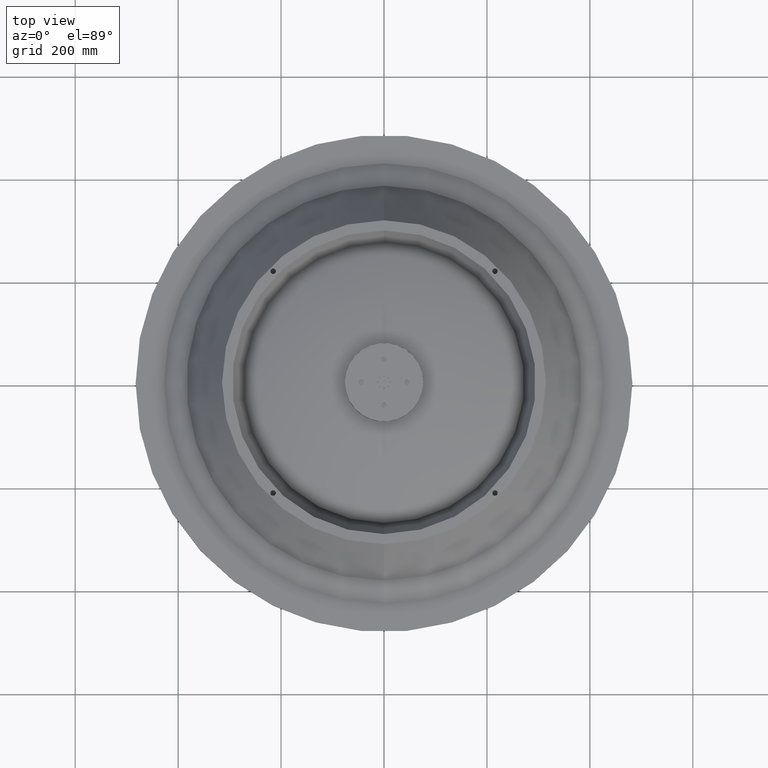
[diagram: clean part render]
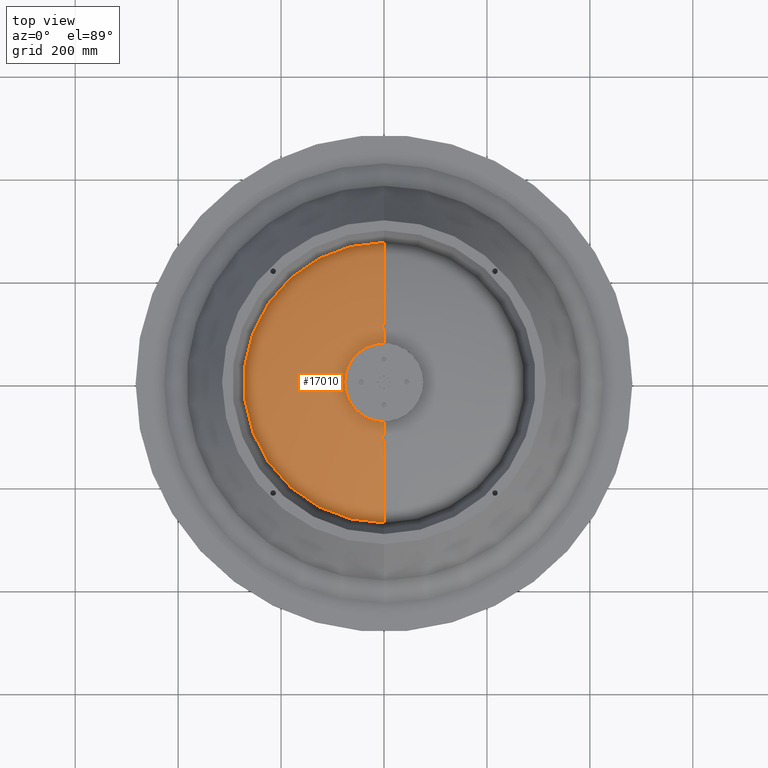
[diagram: same view with one face highlighted and labeled with its STEP entity id]
A machine part, top view. The second image highlights one B-rep face of the part: STEP entity #17010.
In plain terms, the highlighted face is a freeform B-spline surface patch.
Its self-contained STEP definition (entity closure, byte-faithful):
#598 = CARTESIAN_POINT ( 'NONE',  ( 0.0000000000000000000, -8.178297260462326100, -0.6423535246358397200 ) ) ;
#756 = CARTESIAN_POINT ( 'NONE',  ( 0.0000000000000000000, -8.761402134181235400, -0.7927631889134680900 ) ) ;
#968 = CIRCLE ( 'NONE', #17595, 3.000000000000000400 ) ;
#1064 = CARTESIAN_POINT ( 'NONE',  ( 0.0000000000000000000, -7.003057944026662300, -0.3793098138352933300 ) ) ;
#1361 = CARTESIAN_POINT ( 'NONE',  ( 9.297655635048515400E-016, 7.592111979978150200, -0.5044253856656637500 ) ) ;
#1584 = AXIS2_PLACEMENT_3D ( 'NONE', #39711, #29107, #25370 ) ;
#2016 = CARTESIAN_POINT ( 'NONE',  ( 8.576272495395696000E-016, 7.003057944026662300, -0.3793098138352951600 ) ) ;
#2178 = CARTESIAN_POINT ( 'NONE',  ( 7.851658125427159900E-016, 6.411365408290610200, -0.2673257687624191500 ) ) ;
#2484 = CARTESIAN_POINT ( 'NONE',  ( -11.63456893584697100, 5.817284467923486500, -0.1687777021273031700 ) ) ;
#2632 = CARTESIAN_POINT ( 'NONE',  ( -16.35659452092464500, 8.178297260462327900, -0.6423535246358418300 ) ) ;
#2791 = DIRECTION ( 'NONE',  ( -0.0000000000000000000, 1.333910153156378900E-016, 1.000000000000000000 ) ) ;
#2933 = CARTESIAN_POINT ( 'NONE',  ( -21.45447521052874200, -10.72723760526436700, -1.398451331977432800 ) ) ;
#3080 = CARTESIAN_POINT ( 'NONE',  ( -21.45447521052873800, 10.72723760526437400, -1.398451331977435400 ) ) ;
#3393 = B_SPLINE_CURVE_WITH_KNOTS ( 'NONE', 4,
 ( #25349, #29081, #7626, #15263, #40459, #23586, #40615, #34191, #33404, #37026, #1361, #29688, #26265, #33250, #29995, #23746, #8548, #19007 ),
 .UNSPECIFIED., .F., .F.,
 ( 5, 1, 1, 1, 1, 1, 1, 1, 1, 1, 1, 1, 1, 1, 5 ),
 ( 0.1452235832421315000, 0.1511274348975392700, 0.1802528101326781000, 0.2093742672583427400, 0.2384975570847923700, 0.2676212068788597600, 0.2967444476614468600, 0.3258675403824193300, 0.3549910972656926100, 0.3841145608837157600, 0.4132378635046548600, 0.4423611425071244400, 0.4714845983616506900, 0.5006080439910261000, 0.5273046613600674800 ),
 .UNSPECIFIED. ) ;
#3905 = EDGE_CURVE ( 'NONE', #27463, #12210, #3393, .T. ) ;
#4324 = CARTESIAN_POINT ( 'NONE',  ( 0.0000000000000000000, -5.221088869797715600, -0.08395332366964863800 ) ) ;
#5280 = EDGE_LOOP ( 'NONE', ( #13598, #13009, #22305, #14346, #14398 ) ) ;
#5534 = EDGE_CURVE ( 'NONE', #12393, #19615, #18561, .T. ) ;
#5623 = CARTESIAN_POINT ( 'NONE',  ( 1.072962307966784000E-015, 8.761402134181235400, -0.7927631889134704200 ) ) ;
#5774 = CARTESIAN_POINT ( 'NONE',  ( -2.003105112500151100E-015, -8.178297260462326100, -0.6423535246358397200 ) ) ;
#5920 = CARTESIAN_POINT ( 'NONE',  ( -1.278797954492328900E-015, -5.221088869797715600, -0.08395332366964863800 ) ) ;
#6089 = CARTESIAN_POINT ( 'NONE',  ( -1.570331625085432000E-015, -6.411365408290610200, -0.2673257687624174300 ) ) ;
#6246 = CARTESIAN_POINT ( 'NONE',  ( -2.145924615933567900E-015, -8.761402134181235400, -0.7927631889134680900 ) ) ;
#6402 = CARTESIAN_POINT ( 'NONE',  ( -19.81125228330720800, -9.905626141653600700, -1.126031431341025600 ) ) ;
#7626 = CARTESIAN_POINT ( 'NONE',  ( 3.932821899811721600E-016, 3.211392788965687900, 0.09451953058221311500 ) ) ;
#7645 = CIRCLE ( 'NONE', #1584, 10.72723760526437400 ) ;
#8548 = CARTESIAN_POINT ( 'NONE',  ( 1.297728018110974600E-015, 10.59675343955909100, -1.353552292328476800 ) ) ;
#9203 = CARTESIAN_POINT ( 'NONE',  ( -14.00611588805332300, -7.003057944026658700, -0.3793098138352933300 ) ) ;
#9348 = CARTESIAN_POINT ( 'NONE',  ( 1.213089334792643500E-015, 9.905626141653604200, -1.126031431341028000 ) ) ;
#9506 = CARTESIAN_POINT ( 'NONE',  ( 7.124118803372111500E-016, 5.817284467923486500, -0.1687777021273031700 ) ) ;
#9669 = CARTESIAN_POINT ( 'NONE',  ( 5.661635736151305800E-016, 4.623076416884572400, -0.01312035530555122200 ) ) ;
#9821 = CARTESIAN_POINT ( 'NONE',  ( -8.047073619063350900, -4.023536809531673700, 0.04348017057684581300 ) ) ;
#9971 = CARTESIAN_POINT ( 'NONE',  ( -21.19350687911821800, -10.59675343955910300, -1.353552292328480400 ) ) ;
#10121 = CARTESIAN_POINT ( 'NONE',  ( -2.627415439396026400E-015, -10.72723760526437300, -1.398451331977432500 ) ) ;
#10432 = CARTESIAN_POINT ( 'NONE',  ( 0.0000000000000000000, 1.379617935291264900E-017, 0.1034266012614664900 ) ) ;
#10516 = AXIS2_PLACEMENT_3D ( 'NONE', #10432, #2791, #27871 ) ;
#11226 = CARTESIAN_POINT ( 'NONE',  ( 0.0000000000000000000, -9.905626141653598900, -1.126031431341023600 ) ) ;
#11843 = CARTESIAN_POINT ( 'NONE',  ( 0.0000000000000000000, -6.411365408290610200, -0.2673257687624174300 ) ) ;
#12210 = VERTEX_POINT ( 'NONE', #43554 ) ;
#12393 = VERTEX_POINT ( 'NONE', #22308 ) ;
#12794 = CARTESIAN_POINT ( 'NONE',  ( -6.000000000000000900, -2.999999999999999100, 0.1034266012614668800 ) ) ;
#12951 = CARTESIAN_POINT ( 'NONE',  ( -6.060982645144243000, 3.030491322572122800, 0.1021851429775538400 ) ) ;
#13009 = ORIENTED_EDGE ( 'NONE', *, *, #3905, .T. ) ;
#13099 = CARTESIAN_POINT ( 'NONE',  ( -12.82273081658122000, -6.411365408290607500, -0.2673257687624174300 ) ) ;
#13245 = CARTESIAN_POINT ( 'NONE',  ( -1.715254499079139200E-015, -7.003057944026662300, -0.3793098138352933300 ) ) ;
#13390 = CARTESIAN_POINT ( 'NONE',  ( -21.19350687911821400, 10.59675343955911100, -1.353552292328483100 ) ) ;
#13598 = ORIENTED_EDGE ( 'NONE', *, *, #21952, .F. ) ;
#14011 = CARTESIAN_POINT ( 'NONE',  ( -2.426178669585286900E-015, -9.905626141653604200, -1.126031431341025300 ) ) ;
#14346 = ORIENTED_EDGE ( 'NONE', *, *, #5534, .F. ) ;
#14398 = ORIENTED_EDGE ( 'NONE', *, *, #40695, .F. ) ;
#14957 = CARTESIAN_POINT ( 'NONE',  ( 0.0000000000000000000, -10.32337192681491800, -1.261275920413436100 ) ) ;
#15263 = CARTESIAN_POINT ( 'NONE',  ( 4.338367221339926600E-016, 3.542545674687972200, 0.07722810702346766300 ) ) ;
#15278 = CARTESIAN_POINT ( 'NONE',  ( 0.0000000000000000000, -3.000000000000000400, 0.1034266012614668800 ) ) ;
#16539 = CARTESIAN_POINT ( 'NONE',  ( -6.422785577931374900, 3.211392788965688800, 0.09451953058221308800 ) ) ;
#16689 = CARTESIAN_POINT ( 'NONE',  ( -6.000000000000000900, 3.000000000000001300, 0.1034266012614660800 ) ) ;
#16845 = CARTESIAN_POINT ( 'NONE',  ( -15.18422395995629700, 7.592111979978152900, -0.5044253856656637500 ) ) ;
#17010 = ADVANCED_FACE ( 'NONE', ( #38157 ), #21847, .T. ) ;
#17595 = AXIS2_PLACEMENT_3D ( 'NONE', #28380, #24776, #17823 ) ;
#17823 = DIRECTION ( 'NONE',  ( 0.0000000000000000000, -1.000000000000000000, 1.309010496964126000E-016 ) ) ;
#18561 = B_SPLINE_CURVE_WITH_KNOTS ( 'NONE', 4,
 ( #15278, #21888, #43445, #39697, #32651, #36261, #4324, #40005, #11843, #1064, #25514, #598, #756, #32969, #11226, #14957, #22341, #33121 ),
 .UNSPECIFIED., .F., .F.,
 ( 5, 1, 1, 1, 1, 1, 1, 1, 1, 1, 1, 1, 1, 1, 5 ),
 ( 0.1452235832421315000, 0.1511274348975392700, 0.1802528101326781000, 0.2093742672583427400, 0.2384975570847923700, 0.2676212068788597600, 0.2967444476614468600, 0.3258675403824193300, 0.3549910972656925600, 0.3841145608837157600, 0.4132378635046548600, 0.4423611425071244400, 0.4714845983616506900, 0.5006080439910261000, 0.5273046613600675900 ),
 .UNSPECIFIED. ) ;
#19007 = CARTESIAN_POINT ( 'NONE',  ( 1.367914407603938700E-015, 10.72723760526437400, -1.398451331977431200 ) ) ;
#19615 = VERTEX_POINT ( 'NONE', #43385 ) ;
#19980 = CARTESIAN_POINT ( 'NONE',  ( -7.865643799623443200E-016, -3.211392788965687900, 0.09451953058221394800 ) ) ;
#20154 = CARTESIAN_POINT ( 'NONE',  ( 9.297655635048515400E-016, 7.592111979978150200, -0.5044253856656637500 ) ) ;
#20312 = CARTESIAN_POINT ( 'NONE',  ( 3.673940397442060900E-016, 3.000000000000000900, 0.1034266012614660800 ) ) ;
#20468 = CARTESIAN_POINT ( 'NONE',  ( -1.859531127009703100E-015, -7.592111979978150200, -0.5044253856656617500 ) ) ;
#21847 =( BOUNDED_SURFACE ( )  B_SPLINE_SURFACE ( 4, 3, ( 
 ( #20312, #16689, #12794, #31098 ),
 ( #23779, #12951, #27397, #45493 ),
 ( #45166, #16539, #37974, #19980 ),
 ( #23936, #38138, #37824, #41596 ),
 ( #41751, #38289, #9821, #44861 ),
 ( #9669, #24101, #41438, #45010 ),
 ( #23624, #34384, #45334, #5920 ),
 ( #9506, #2484, #27563, #34538 ),
 ( #2178, #23471, #13099, #6089 ),
 ( #2016, #34694, #9203, #13245 ),
 ( #20154, #16845, #41904, #20468 ),
 ( #27243, #2632, #27095, #5774 ),
 ( #5623, #27712, #30646, #6246 ),
 ( #31256, #30798, #34861, #37679 ),
 ( #9348, #41275, #6402, #14011 ),
 ( #42673, #45952, #42208, #24556 ),
 ( #31416, #13390, #9971, #31705 ),
 ( #35004, #3080, #2933, #10121 ) ),
 .UNSPECIFIED., .F., .F., .F. ) 
 B_SPLINE_SURFACE_WITH_KNOTS ( ( 5, 1, 1, 1, 1, 1, 1, 1, 1, 1, 1, 1, 1, 1, 5 ),
 ( 4, 4 ),
 ( 0.1452235832421315300, 0.1511274348975392700, 0.1802528101326781000, 0.2093742672583427400, 0.2384975570847923700, 0.2676212068788597600, 0.2967444476614468600, 0.3258675403824193300, 0.3549910972656926100, 0.3841145608837157600, 0.4132378635046548600, 0.4423611425071244900, 0.4714845983616507400, 0.5006080439910261000, 0.5273046613600687000 ),
 ( 0.0000000000000000000, 1.000000000000000000 ),
 .UNSPECIFIED. ) 
 GEOMETRIC_REPRESENTATION_ITEM ( )  RATIONAL_B_SPLINE_SURFACE ( (
 ( 1.000000000000000000, 0.3333333333333334300, 0.3333333333333334300, 1.000000000000000000),
 ( 1.000000000000000000, 0.3333333333333334300, 0.3333333333333334300, 1.000000000000000000),
 ( 1.000000000000000000, 0.3333333333333334300, 0.3333333333333334300, 1.000000000000000000),
 ( 1.000000000000000000, 0.3333333333333334300, 0.3333333333333334300, 1.000000000000000000),
 ( 1.000000000000000000, 0.3333333333333334300, 0.3333333333333334300, 1.000000000000000000),
 ( 1.000000000000000000, 0.3333333333333334300, 0.3333333333333334300, 1.000000000000000000),
 ( 1.000000000000000000, 0.3333333333333334300, 0.3333333333333334300, 1.000000000000000000),
 ( 1.000000000000000000, 0.3333333333333334300, 0.3333333333333334300, 1.000000000000000000),
 ( 1.000000000000000000, 0.3333333333333334300, 0.3333333333333334300, 1.000000000000000000),
 ( 1.000000000000000000, 0.3333333333333334300, 0.3333333333333334300, 1.000000000000000000),
 ( 1.000000000000000000, 0.3333333333333334300, 0.3333333333333334300, 1.000000000000000000),
 ( 1.000000000000000000, 0.3333333333333334300, 0.3333333333333334300, 1.000000000000000000),
 ( 1.000000000000000000, 0.3333333333333334300, 0.3333333333333334300, 1.000000000000000000),
 ( 1.000000000000000000, 0.3333333333333334300, 0.3333333333333334300, 1.000000000000000000),
 ( 1.000000000000000000, 0.3333333333333334300, 0.3333333333333334300, 1.000000000000000000),
 ( 1.000000000000000000, 0.3333333333333334300, 0.3333333333333334300, 1.000000000000000000),
 ( 1.000000000000000000, 0.3333333333333334300, 0.3333333333333334300, 1.000000000000000000),
 ( 1.000000000000000000, 0.3333333333333334300, 0.3333333333333334300, 1.000000000000000000) ) ) 
 REPRESENTATION_ITEM ( '' )  SURFACE ( )  );
#21888 = CARTESIAN_POINT ( 'NONE',  ( 0.0000000000000000000, -3.030491322572121900, 0.1021851429775546500 ) ) ;
#21952 = EDGE_CURVE ( 'NONE', #27463, #43125, #46306, .T. ) ;
#22305 = ORIENTED_EDGE ( 'NONE', *, *, #23179, .F. ) ;
#22308 = CARTESIAN_POINT ( 'NONE',  ( 0.0000000000000000000, -3.000000000000000400, 0.1034266012614668800 ) ) ;
#22341 = CARTESIAN_POINT ( 'NONE',  ( 0.0000000000000000000, -10.59675343955909100, -1.353552292328474600 ) ) ;
#23179 = EDGE_CURVE ( 'NONE', #19615, #12210, #7645, .T. ) ;
#23471 = CARTESIAN_POINT ( 'NONE',  ( -12.82273081658121900, 6.411365408290612000, -0.2673257687624191500 ) ) ;
#23586 = CARTESIAN_POINT ( 'NONE',  ( 5.661635736151305800E-016, 4.623076416884572400, -0.01312035530555122200 ) ) ;
#23624 = CARTESIAN_POINT ( 'NONE',  ( 6.393989772461644600E-016, 5.221088869797715600, -0.08395332366965004000 ) ) ;
#23746 = CARTESIAN_POINT ( 'NONE',  ( 1.264248438658153200E-015, 10.32337192681491800, -1.261275920413438300 ) ) ;
#23779 = CARTESIAN_POINT ( 'NONE',  ( 3.711281498031778400E-016, 3.030491322572121900, 0.1021851429775538500 ) ) ;
#23936 = CARTESIAN_POINT ( 'NONE',  ( 4.338367221339926600E-016, 3.542545674687972700, 0.07722810702346764900 ) ) ;
#24101 = CARTESIAN_POINT ( 'NONE',  ( -9.246152833769141200, 4.623076416884573300, -0.01312035530555122200 ) ) ;
#24556 = CARTESIAN_POINT ( 'NONE',  ( -2.528496877316309900E-015, -10.32337192681493000, -1.261275920413439400 ) ) ;
#24776 = DIRECTION ( 'NONE',  ( -0.0000000000000000000, 1.333910153156378900E-016, 1.000000000000000000 ) ) ;
#25349 = CARTESIAN_POINT ( 'NONE',  ( 8.405508797211078500E-016, 3.000000000000000400, 0.1034266012614661100 ) ) ;
#25370 = DIRECTION ( 'NONE',  ( 0.0000000000000000000, 1.000000000000000000, 1.273323149066640200E-016 ) ) ;
#25514 = CARTESIAN_POINT ( 'NONE',  ( 0.0000000000000000000, -7.592111979978150200, -0.5044253856656617500 ) ) ;
#26265 = CARTESIAN_POINT ( 'NONE',  ( 1.072962307966784000E-015, 8.761402134181235400, -0.7927631889134704200 ) ) ;
#27095 = CARTESIAN_POINT ( 'NONE',  ( -16.35659452092465200, -8.178297260462320800, -0.6423535246358397200 ) ) ;
#27243 = CARTESIAN_POINT ( 'NONE',  ( 1.001552556250075500E-015, 8.178297260462326100, -0.6423535246358418300 ) ) ;
#27397 = CARTESIAN_POINT ( 'NONE',  ( -6.060982645144243000, -3.030491322572120200, 0.1021851429775546500 ) ) ;
#27463 = VERTEX_POINT ( 'NONE', #43986 ) ;
#27563 = CARTESIAN_POINT ( 'NONE',  ( -11.63456893584697300, -5.817284467923483000, -0.1687777021273016400 ) ) ;
#27712 = CARTESIAN_POINT ( 'NONE',  ( -17.52280426836246400, 8.761402134181237100, -0.7927631889134704200 ) ) ;
#27871 = DIRECTION ( 'NONE',  ( 0.0000000000000000000, -1.000000000000000000, 1.309010496964126000E-016 ) ) ;
#28380 = CARTESIAN_POINT ( 'NONE',  ( 0.0000000000000000000, 1.379617935291264900E-017, 0.1034266012614664900 ) ) ;
#29081 = CARTESIAN_POINT ( 'NONE',  ( 3.711281498031777900E-016, 3.030491322572121900, 0.1021851429775538600 ) ) ;
#29107 = DIRECTION ( 'NONE',  ( -0.0000000000000000000, 1.224646799147353700E-016, -1.000000000000000000 ) ) ;
#29688 = CARTESIAN_POINT ( 'NONE',  ( 1.001552556250075500E-015, 8.178297260462326100, -0.6423535246358418300 ) ) ;
#29985 = CARTESIAN_POINT ( 'NONE',  ( -3.000000000000000400, 3.673940397442058400E-016, 0.1034266012614664900 ) ) ;
#29995 = CARTESIAN_POINT ( 'NONE',  ( 1.213089334792642900E-015, 9.905626141653598900, -1.126031431341026200 ) ) ;
#30646 = CARTESIAN_POINT ( 'NONE',  ( -17.52280426836246700, -8.761402134181230000, -0.7927631889134680900 ) ) ;
#30798 = CARTESIAN_POINT ( 'NONE',  ( -18.68247448173002200, 9.341237240865018200, -0.9553149776089305800 ) ) ;
#31098 = CARTESIAN_POINT ( 'NONE',  ( -7.347880794884121700E-016, -3.000000000000000900, 0.1034266012614668800 ) ) ;
#31256 = CARTESIAN_POINT ( 'NONE',  ( 1.143971628710139500E-015, 9.341237240865016400, -0.9553149776089305800 ) ) ;
#31416 = CARTESIAN_POINT ( 'NONE',  ( 1.297728018110977000E-015, 10.59675343955910900, -1.353552292328483300 ) ) ;
#31705 = CARTESIAN_POINT ( 'NONE',  ( -2.595456036221953900E-015, -10.59675343955910900, -1.353552292328480400 ) ) ;
#32651 = CARTESIAN_POINT ( 'NONE',  ( 0.0000000000000000000, -4.023536809531676400, 0.04348017057684581300 ) ) ;
#32969 = CARTESIAN_POINT ( 'NONE',  ( 0.0000000000000000000, -9.341237240865016400, -0.9553149776089281400 ) ) ;
#33121 = CARTESIAN_POINT ( 'NONE',  ( 0.0000000000000000000, -10.72723760526437400, -1.398451331977434100 ) ) ;
#33250 = CARTESIAN_POINT ( 'NONE',  ( 1.143971628710139500E-015, 9.341237240865016400, -0.9553149776089305800 ) ) ;
#33404 = CARTESIAN_POINT ( 'NONE',  ( 7.851658125427159900E-016, 6.411365408290610200, -0.2673257687624191500 ) ) ;
#34191 = CARTESIAN_POINT ( 'NONE',  ( 7.124118803372111500E-016, 5.817284467923486500, -0.1687777021273031700 ) ) ;
#34384 = CARTESIAN_POINT ( 'NONE',  ( -10.44217773959543100, 5.221088869797716500, -0.08395332366965004000 ) ) ;
#34538 = CARTESIAN_POINT ( 'NONE',  ( -1.424823760674422300E-015, -5.817284467923486500, -0.1687777021273016400 ) ) ;
#34694 = CARTESIAN_POINT ( 'NONE',  ( -14.00611588805332100, 7.003057944026664000, -0.3793098138352951600 ) ) ;
#34861 = CARTESIAN_POINT ( 'NONE',  ( -18.68247448173003300, -9.341237240865011100, -0.9553149776089282500 ) ) ;
#35004 = CARTESIAN_POINT ( 'NONE',  ( 1.313707719698013600E-015, 10.72723760526437300, -1.398451331977435400 ) ) ;
#36261 = CARTESIAN_POINT ( 'NONE',  ( 0.0000000000000000000, -4.623076416884572400, -0.01312035530554998800 ) ) ;
#37026 = CARTESIAN_POINT ( 'NONE',  ( 8.576272495395696000E-016, 7.003057944026662300, -0.3793098138352951600 ) ) ;
#37679 = CARTESIAN_POINT ( 'NONE',  ( -2.287943257420279000E-015, -9.341237240865016400, -0.9553149776089281400 ) ) ;
#37824 = CARTESIAN_POINT ( 'NONE',  ( -7.085091349375946200, -3.542545674687971800, 0.07722810702346857800 ) ) ;
#37974 = CARTESIAN_POINT ( 'NONE',  ( -6.422785577931374900, -3.211392788965686100, 0.09451953058221396200 ) ) ;
#38138 = CARTESIAN_POINT ( 'NONE',  ( -7.085091349375944400, 3.542545674687973500, 0.07722810702346763500 ) ) ;
#38157 = FACE_OUTER_BOUND ( 'NONE', #5280, .T. ) ;
#38289 = CARTESIAN_POINT ( 'NONE',  ( -8.047073619063350900, 4.023536809531677200, 0.04348017057684473700 ) ) ;
#39697 = CARTESIAN_POINT ( 'NONE',  ( 0.0000000000000000000, -3.542545674687972200, 0.07722810702346860600 ) ) ;
#39711 = CARTESIAN_POINT ( 'NONE',  ( 0.0000000000000000000, 1.712608947469516200E-016, -1.398451331977432500 ) ) ;
#40005 = CARTESIAN_POINT ( 'NONE',  ( 0.0000000000000000000, -5.817284467923486500, -0.1687777021273016400 ) ) ;
#40459 = CARTESIAN_POINT ( 'NONE',  ( 4.927411475044521200E-016, 4.023536809531676400, 0.04348017057684473700 ) ) ;
#40615 = CARTESIAN_POINT ( 'NONE',  ( 6.393989772461644600E-016, 5.221088869797715600, -0.08395332366965004000 ) ) ;
#40695 = EDGE_CURVE ( 'NONE', #43125, #12393, #968, .T. ) ;
#41275 = CARTESIAN_POINT ( 'NONE',  ( -19.81125228330720500, 9.905626141653607800, -1.126031431341028200 ) ) ;
#41438 = CARTESIAN_POINT ( 'NONE',  ( -9.246152833769144800, -4.623076416884569700, -0.01312035530554998800 ) ) ;
#41596 = CARTESIAN_POINT ( 'NONE',  ( -8.676734442679853300E-016, -3.542545674687972700, 0.07722810702346857800 ) ) ;
#41751 = CARTESIAN_POINT ( 'NONE',  ( 4.927411475044521200E-016, 4.023536809531676400, 0.04348017057684473700 ) ) ;
#41904 = CARTESIAN_POINT ( 'NONE',  ( -15.18422395995629700, -7.592111979978147600, -0.5044253856656617500 ) ) ;
#42208 = CARTESIAN_POINT ( 'NONE',  ( -20.64674385362985700, -10.32337192681492700, -1.261275920413439400 ) ) ;
#42673 = CARTESIAN_POINT ( 'NONE',  ( 1.264248438658154800E-015, 10.32337192681493000, -1.261275920413442100 ) ) ;
#43125 = VERTEX_POINT ( 'NONE', #29985 ) ;
#43385 = CARTESIAN_POINT ( 'NONE',  ( 0.0000000000000000000, -10.72723760526437400, -1.398451331977434100 ) ) ;
#43445 = CARTESIAN_POINT ( 'NONE',  ( 0.0000000000000000000, -3.211392788965687900, 0.09451953058221397600 ) ) ;
#43554 = CARTESIAN_POINT ( 'NONE',  ( 1.367914407603938700E-015, 10.72723760526437400, -1.398451331977431200 ) ) ;
#43986 = CARTESIAN_POINT ( 'NONE',  ( 8.405508797211078500E-016, 3.000000000000000400, 0.1034266012614661100 ) ) ;
#44861 = CARTESIAN_POINT ( 'NONE',  ( -9.854822950089042400E-016, -4.023536809531676400, 0.04348017057684581300 ) ) ;
#45010 = CARTESIAN_POINT ( 'NONE',  ( -1.132327147230261200E-015, -4.623076416884572400, -0.01312035530554998800 ) ) ;
#45166 = CARTESIAN_POINT ( 'NONE',  ( 3.932821899811721600E-016, 3.211392788965687900, 0.09451953058221310200 ) ) ;
#45334 = CARTESIAN_POINT ( 'NONE',  ( -10.44217773959543100, -5.221088869797712900, -0.08395332366964863800 ) ) ;
#45493 = CARTESIAN_POINT ( 'NONE',  ( -7.422562996063556800E-016, -3.030491322572121900, 0.1021851429775546500 ) ) ;
#45952 = CARTESIAN_POINT ( 'NONE',  ( -20.64674385362985700, 10.32337192681493400, -1.261275920413442100 ) ) ;
#46306 = CIRCLE ( 'NONE', #10516, 3.000000000000000400 ) ;